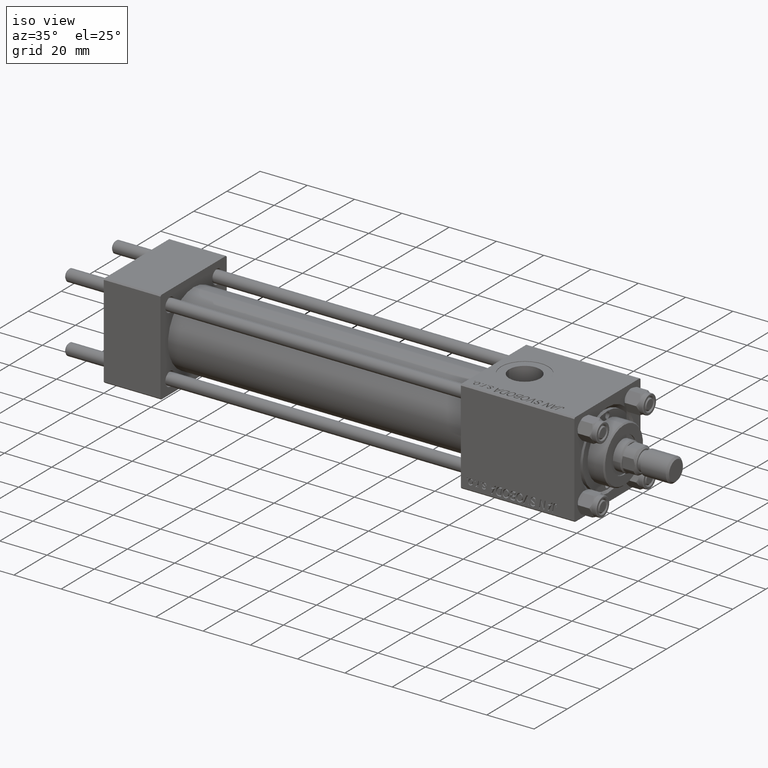
[diagram: clean part render]
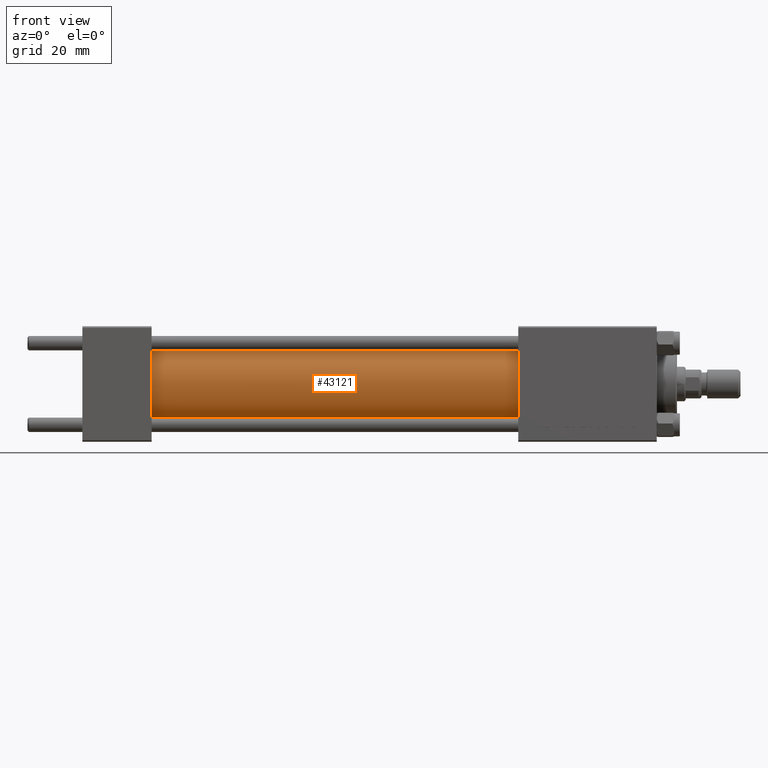
[diagram: tour spotlight — one face highlighted and labeled with its STEP entity id]
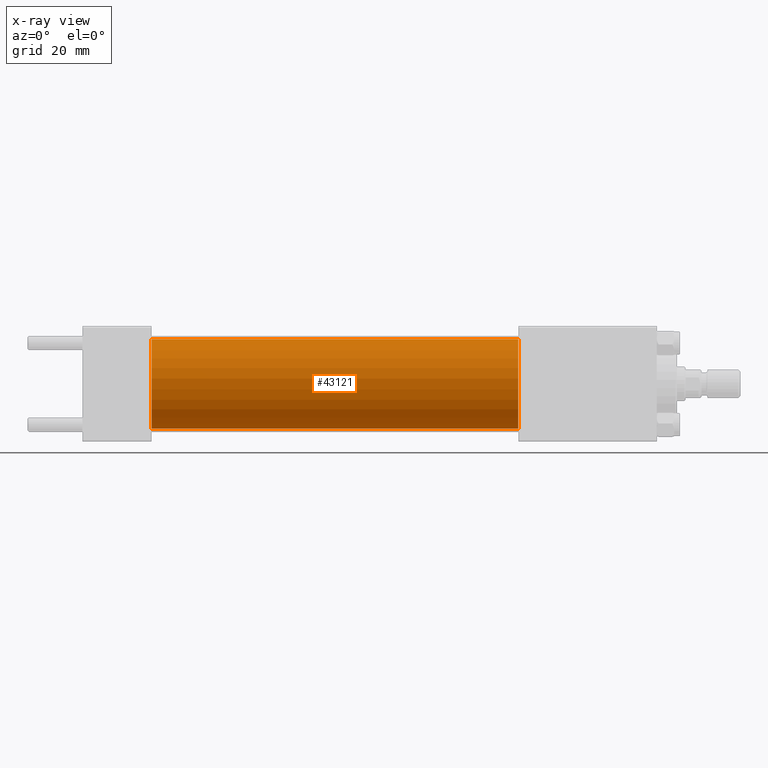
[diagram: x-ray of the same camera — body ghosted, this tour face saturated]
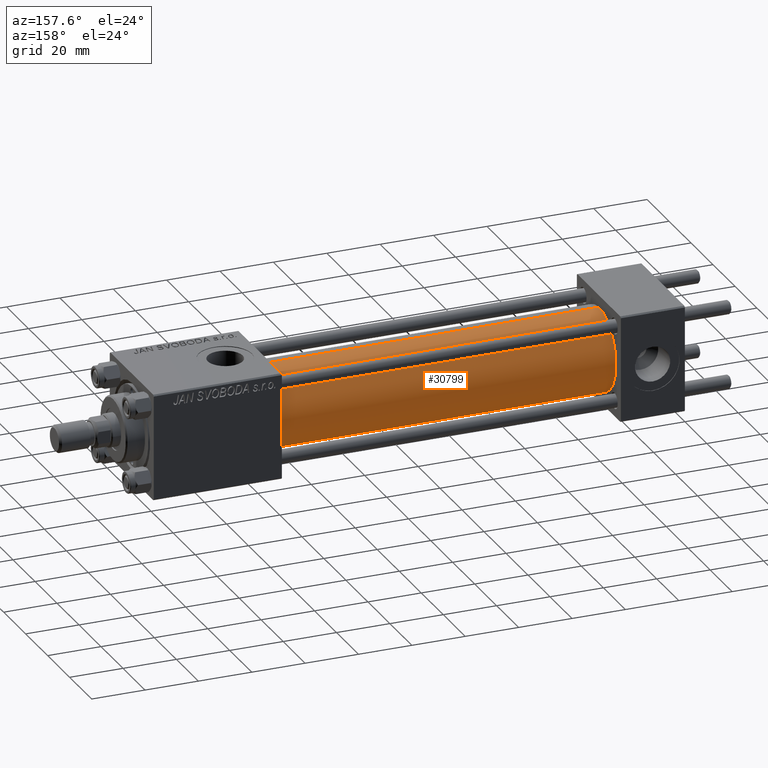
[diagram: tour spotlight — one face highlighted and labeled with its STEP entity id]
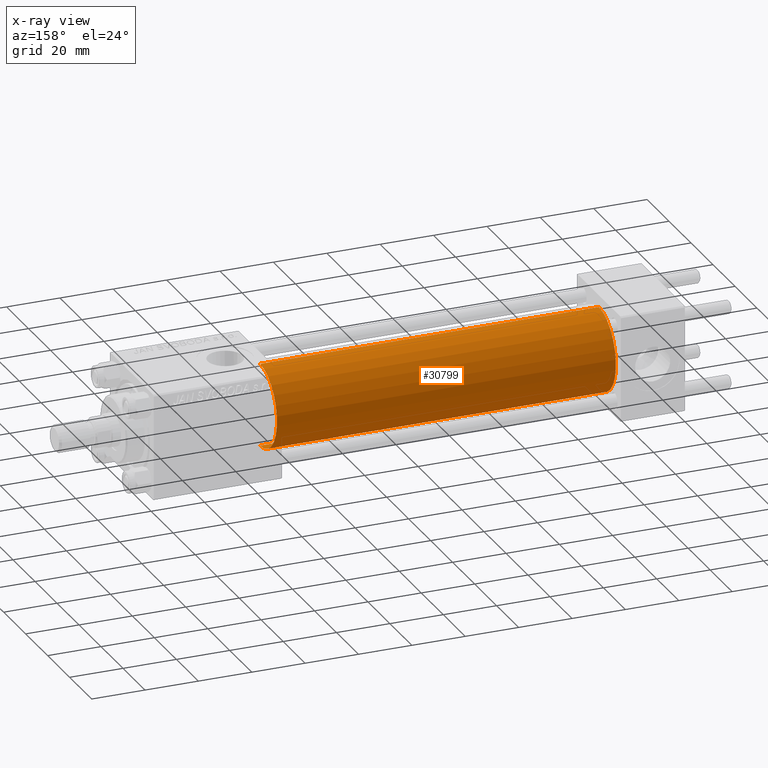
[diagram: x-ray of the same camera — body ghosted, this tour face saturated]
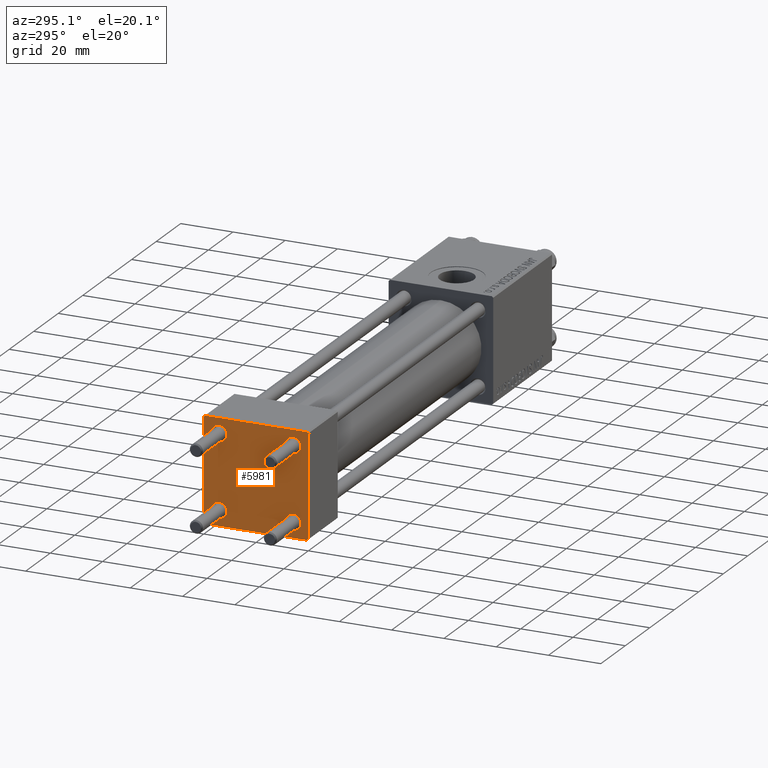
[diagram: tour spotlight — one face highlighted and labeled with its STEP entity id]
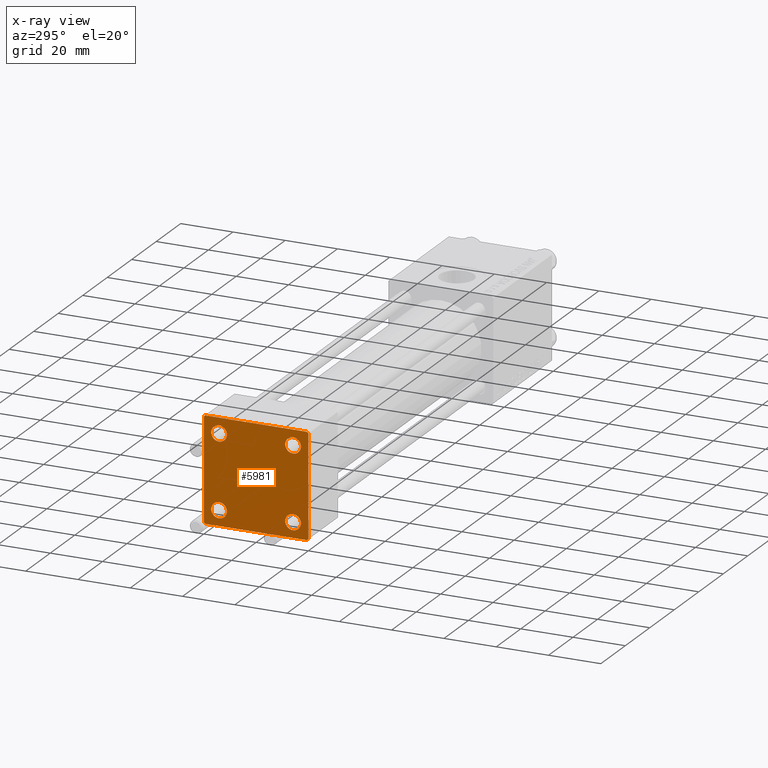
[diagram: x-ray of the same camera — body ghosted, this tour face saturated]
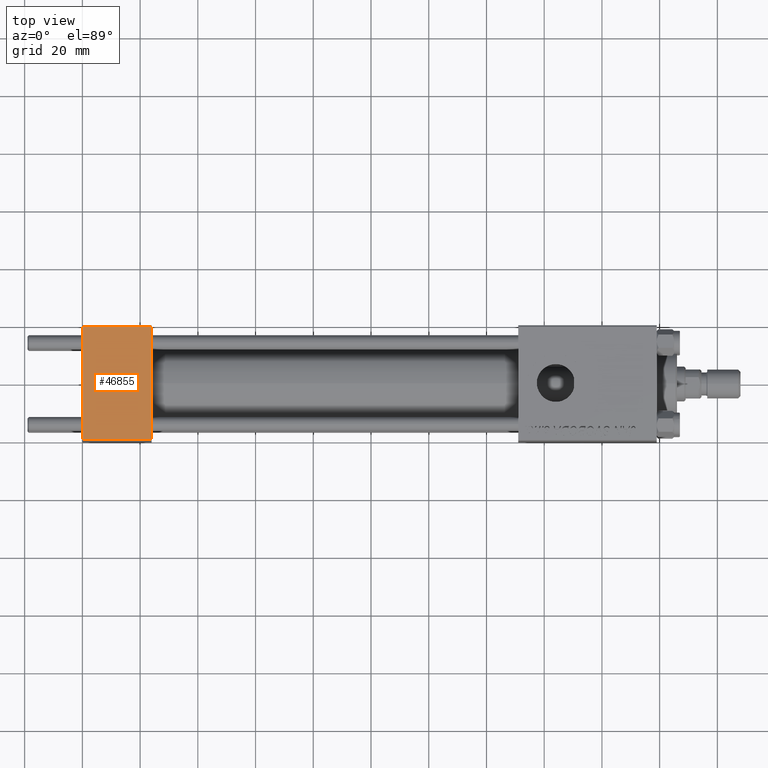
[diagram: tour spotlight — one face highlighted and labeled with its STEP entity id]
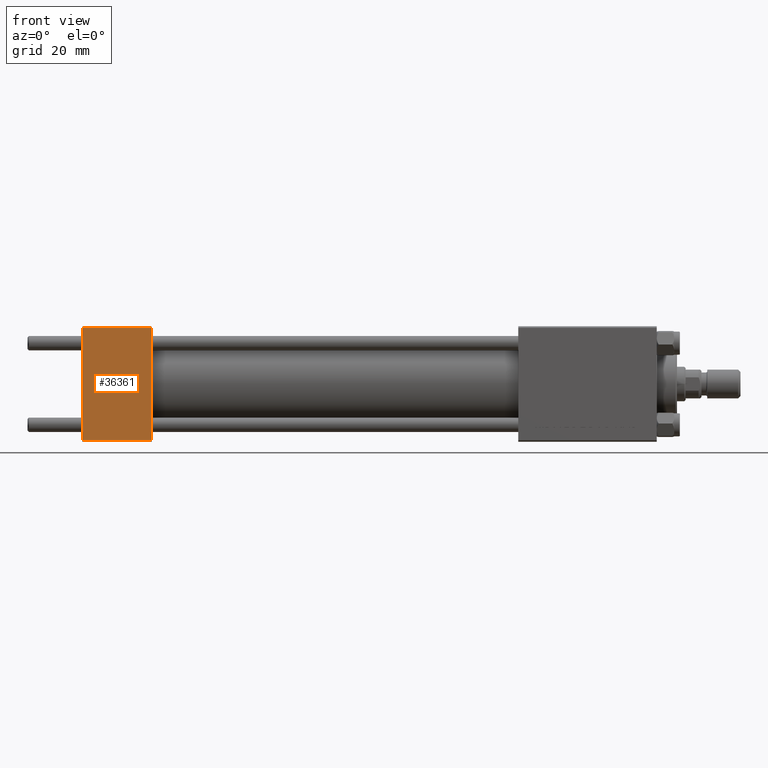
[diagram: tour spotlight — one face highlighted and labeled with its STEP entity id]
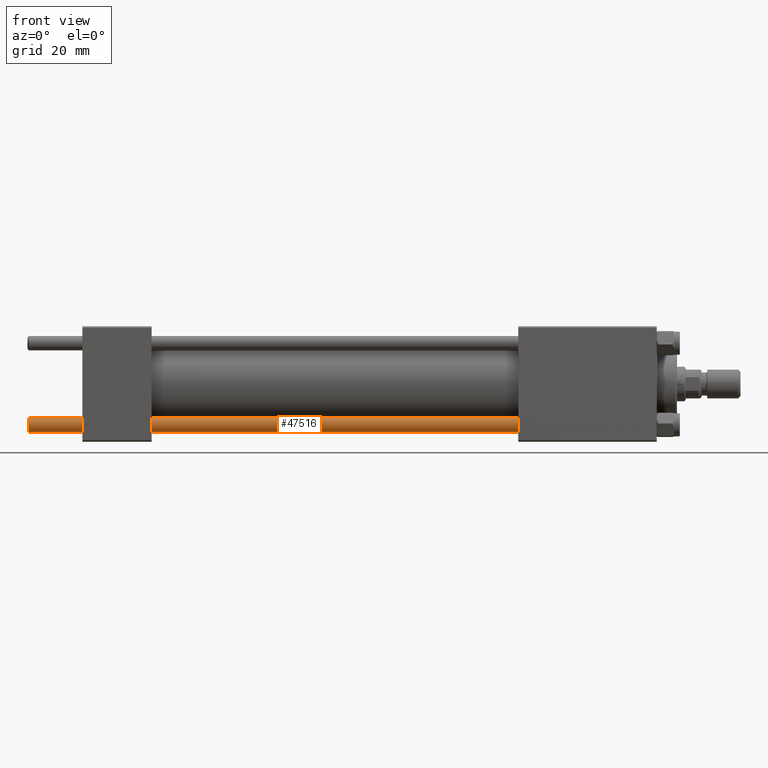
[diagram: tour spotlight — one face highlighted and labeled with its STEP entity id]
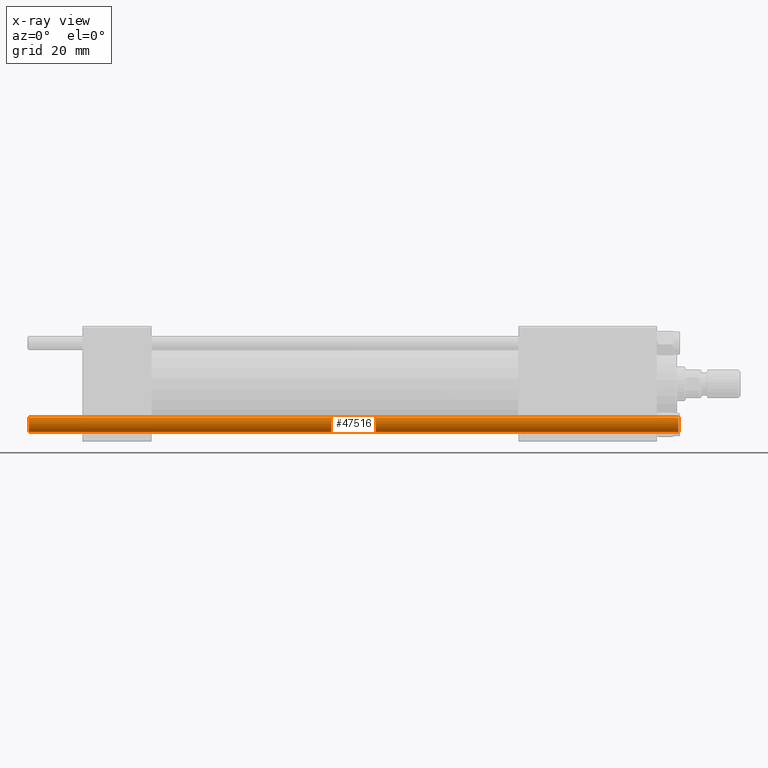
[diagram: x-ray of the same camera — body ghosted, this tour face saturated]
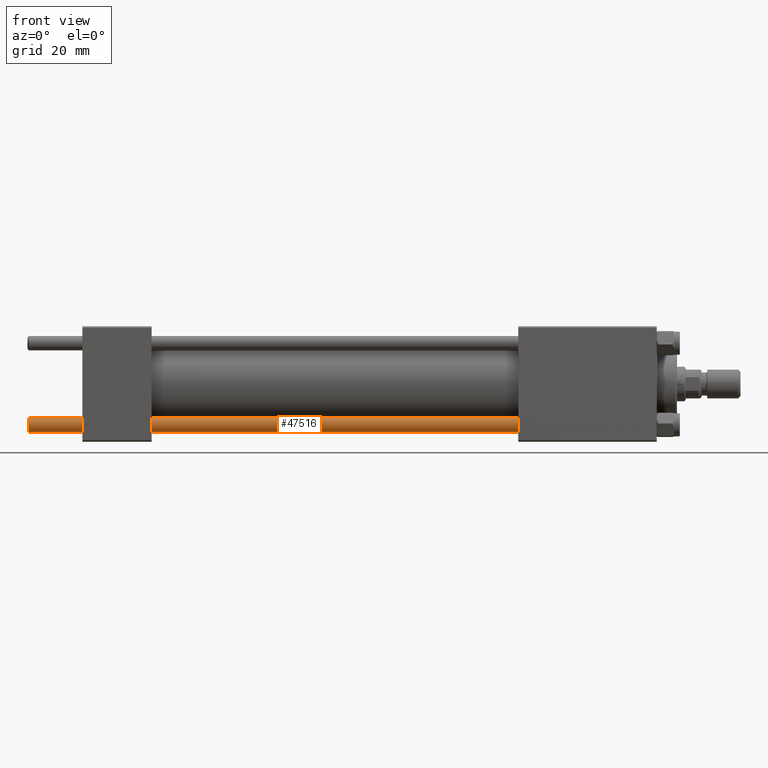
[diagram: tour spotlight — one face highlighted and labeled with its STEP entity id]
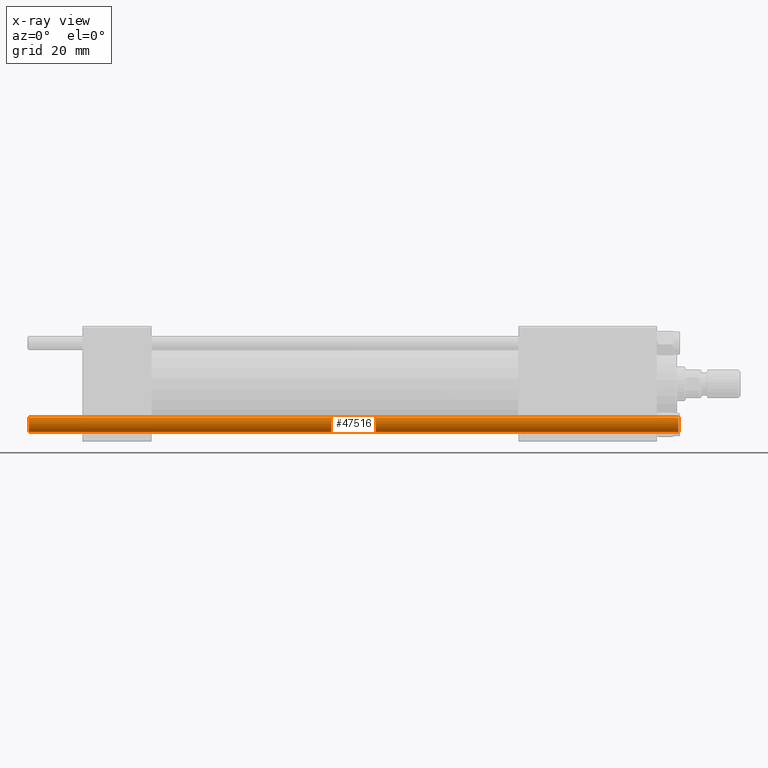
[diagram: x-ray of the same camera — body ghosted, this tour face saturated]
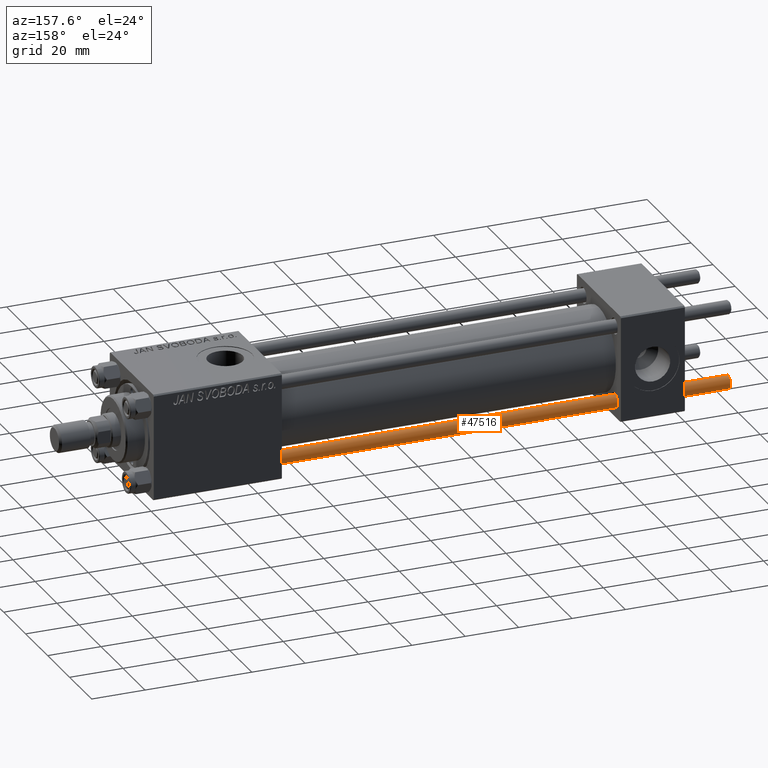
[diagram: tour spotlight — one face highlighted and labeled with its STEP entity id]
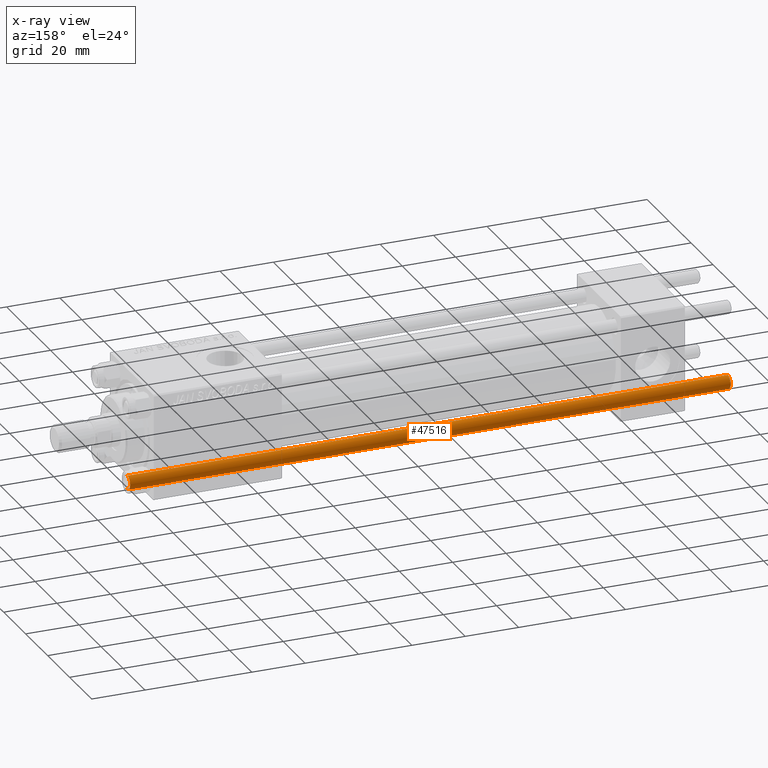
[diagram: x-ray of the same camera — body ghosted, this tour face saturated]
A machine part: a face-by-face anatomy tour. The part has 1152 B-rep faces; the first image is the clean iso view, then the 8 largest visible faces are spotlighted one at a time (largest first), each with its STEP entity span.

Face 1 — front view, entity #43121. An x-ray twin of the same camera follows (body ghosted, this face saturated) — the face is partly hidden behind the body. In plain terms, the highlighted cylindrical surface (partial cylindrical patch) has radius 15.5 mm, axis along (-1, -0, -0).
Definition (entity closure, byte-faithful):
#927 = DIRECTION ( 'NONE',  ( 1.000000000000000000, 0.000000000000000000, 0.000000000000000000 ) ) ;
#1795 = CIRCLE ( 'NONE', #42511, 15.50000000000000000 ) ;
#1943 = ORIENTED_EDGE ( 'NONE', *, *, #12448, .F. ) ;
#3810 = DIRECTION ( 'NONE',  ( -1.000000000000000000, -0.000000000000000000, -0.000000000000000000 ) ) ;
#4733 = DIRECTION ( 'NONE',  ( 0.000000000000000000, 0.000000000000000000, 1.000000000000000000 ) ) ;
#5282 = CARTESIAN_POINT ( 'NONE',  ( 23.99999999999999289, 0.000000000000000000, 15.50000000000000000 ) ) ;
#6144 = CARTESIAN_POINT ( 'NONE',  ( 151.0000000000000000, 1.898202538678397557E-15, -15.50000000000000000 ) ) ;
#6167 = DIRECTION ( 'NONE',  ( 0.000000000000000000, 0.000000000000000000, 1.000000000000000000 ) ) ;
#6948 = AXIS2_PLACEMENT_3D ( 'NONE', #14591, #41105, #6167 ) ;
#7231 = LINE ( 'NONE', #23529, #14005 ) ;
#7379 = CARTESIAN_POINT ( 'NONE',  ( 151.0000000000000000, 0.000000000000000000, 0.000000000000000000 ) ) ;
#10784 = EDGE_CURVE ( 'NONE', #45286, #40526, #7231, .T. ) ;
#11297 = VERTEX_POINT ( 'NONE', #5282 ) ;
#12448 = EDGE_CURVE ( 'NONE', #49851, #45286, #1795, .T. ) ;
#14005 = VECTOR ( 'NONE', #35004, 1000.000000000000000 ) ;
#14088 = CYLINDRICAL_SURFACE ( 'NONE', #6948, 15.50000000000000000 ) ;
#14341 = FACE_OUTER_BOUND ( 'NONE', #18877, .T. ) ;
#14573 = EDGE_CURVE ( 'NONE', #49851, #11297, #19122, .T. ) ;
#14591 = CARTESIAN_POINT ( 'NONE',  ( 151.0000000000000000, 0.000000000000000000, 0.000000000000000000 ) ) ;
#18877 = EDGE_LOOP ( 'NONE', ( #26655, #1943, #20324, #33878 ) ) ;
#19122 = LINE ( 'NONE', #38745, #27120 ) ;
#20324 = ORIENTED_EDGE ( 'NONE', *, *, #14573, .T. ) ;
#23529 = CARTESIAN_POINT ( 'NONE',  ( 151.0000000000000000, 1.898202538678397557E-15, -15.50000000000000000 ) ) ;
#26655 = ORIENTED_EDGE ( 'NONE', *, *, #10784, .F. ) ;
#27120 = VECTOR ( 'NONE', #3810, 1000.000000000000000 ) ;
#27245 = DIRECTION ( 'NONE',  ( 0.000000000000000000, 0.000000000000000000, -1.000000000000000000 ) ) ;
#27458 = AXIS2_PLACEMENT_3D ( 'NONE', #39679, #927, #4733 ) ;
#32335 = CIRCLE ( 'NONE', #27458, 15.50000000000000000 ) ;
#33878 = ORIENTED_EDGE ( 'NONE', *, *, #47865, .T. ) ;
#35004 = DIRECTION ( 'NONE',  ( -1.000000000000000000, -0.000000000000000000, -0.000000000000000000 ) ) ;
#38745 = CARTESIAN_POINT ( 'NONE',  ( 151.0000000000000000, 0.000000000000000000, 15.50000000000000000 ) ) ;
#39679 = CARTESIAN_POINT ( 'NONE',  ( 23.99999999999999289, 0.000000000000000000, 0.000000000000000000 ) ) ;
#40526 = VERTEX_POINT ( 'NONE', #41898 ) ;
#41105 = DIRECTION ( 'NONE',  ( -1.000000000000000000, -0.000000000000000000, -0.000000000000000000 ) ) ;
#41898 = CARTESIAN_POINT ( 'NONE',  ( 23.99999999999999289, 1.898202538678397557E-15, -15.50000000000000000 ) ) ;
#42511 = AXIS2_PLACEMENT_3D ( 'NONE', #7379, #50435, #27245 ) ;
#43121 = ADVANCED_FACE ( 'NONE', ( #14341 ), #14088, .T. ) ;
#45286 = VERTEX_POINT ( 'NONE', #6144 ) ;
#47865 = EDGE_CURVE ( 'NONE', #11297, #40526, #32335, .T. ) ;
#49851 = VERTEX_POINT ( 'NONE', #50262 ) ;
#50262 = CARTESIAN_POINT ( 'NONE',  ( 151.0000000000000000, 0.000000000000000000, 15.50000000000000000 ) ) ;
#50435 = DIRECTION ( 'NONE',  ( 1.000000000000000000, 0.000000000000000000, 0.000000000000000000 ) ) ;

Face 2 — auxiliary view, entity #30799. An x-ray twin of the same camera follows (body ghosted, this face saturated) — the face is partly hidden behind the body. In plain terms, the highlighted cylindrical surface (partial cylindrical patch) has radius 15.5 mm, axis along (-1, -0, -0).
Definition (entity closure, byte-faithful):
#220 = CARTESIAN_POINT ( 'NONE',  ( 151.0000000000000000, 0.000000000000000000, 0.000000000000000000 ) ) ;
#3810 = DIRECTION ( 'NONE',  ( -1.000000000000000000, -0.000000000000000000, -0.000000000000000000 ) ) ;
#5282 = CARTESIAN_POINT ( 'NONE',  ( 23.99999999999999289, 0.000000000000000000, 15.50000000000000000 ) ) ;
#6144 = CARTESIAN_POINT ( 'NONE',  ( 151.0000000000000000, 1.898202538678397557E-15, -15.50000000000000000 ) ) ;
#7231 = LINE ( 'NONE', #23529, #14005 ) ;
#8627 = CYLINDRICAL_SURFACE ( 'NONE', #9066, 15.50000000000000000 ) ;
#9066 = AXIS2_PLACEMENT_3D ( 'NONE', #220, #35634, #35389 ) ;
#9837 = DIRECTION ( 'NONE',  ( 0.000000000000000000, 0.000000000000000000, 1.000000000000000000 ) ) ;
#10784 = EDGE_CURVE ( 'NONE', #45286, #40526, #7231, .T. ) ;
#11297 = VERTEX_POINT ( 'NONE', #5282 ) ;
#11453 = FACE_OUTER_BOUND ( 'NONE', #29609, .T. ) ;
#11787 = CARTESIAN_POINT ( 'NONE',  ( 151.0000000000000000, 0.000000000000000000, 0.000000000000000000 ) ) ;
#14005 = VECTOR ( 'NONE', #35004, 1000.000000000000000 ) ;
#14166 = EDGE_CURVE ( 'NONE', #45286, #49851, #22250, .T. ) ;
#14573 = EDGE_CURVE ( 'NONE', #49851, #11297, #19122, .T. ) ;
#16551 = AXIS2_PLACEMENT_3D ( 'NONE', #11787, #24241, #31891 ) ;
#19122 = LINE ( 'NONE', #38745, #27120 ) ;
#21311 = DIRECTION ( 'NONE',  ( 1.000000000000000000, 0.000000000000000000, 0.000000000000000000 ) ) ;
#22250 = CIRCLE ( 'NONE', #16551, 15.50000000000000000 ) ;
#23529 = CARTESIAN_POINT ( 'NONE',  ( 151.0000000000000000, 1.898202538678397557E-15, -15.50000000000000000 ) ) ;
#24241 = DIRECTION ( 'NONE',  ( 1.000000000000000000, 0.000000000000000000, 0.000000000000000000 ) ) ;
#25117 = CARTESIAN_POINT ( 'NONE',  ( 23.99999999999999289, 0.000000000000000000, 0.000000000000000000 ) ) ;
#25768 = ORIENTED_EDGE ( 'NONE', *, *, #14166, .F. ) ;
#27120 = VECTOR ( 'NONE', #3810, 1000.000000000000000 ) ;
#29609 = EDGE_LOOP ( 'NONE', ( #25768, #40313, #49373, #30433 ) ) ;
#30433 = ORIENTED_EDGE ( 'NONE', *, *, #14573, .F. ) ;
#30799 = ADVANCED_FACE ( 'NONE', ( #11453 ), #8627, .T. ) ;
#31891 = DIRECTION ( 'NONE',  ( 0.000000000000000000, 0.000000000000000000, -1.000000000000000000 ) ) ;
#35004 = DIRECTION ( 'NONE',  ( -1.000000000000000000, -0.000000000000000000, -0.000000000000000000 ) ) ;
#35389 = DIRECTION ( 'NONE',  ( 0.000000000000000000, 0.000000000000000000, 1.000000000000000000 ) ) ;
#35634 = DIRECTION ( 'NONE',  ( -1.000000000000000000, -0.000000000000000000, -0.000000000000000000 ) ) ;
#38401 = EDGE_CURVE ( 'NONE', #40526, #11297, #41887, .T. ) ;
#38745 = CARTESIAN_POINT ( 'NONE',  ( 151.0000000000000000, 0.000000000000000000, 15.50000000000000000 ) ) ;
#40313 = ORIENTED_EDGE ( 'NONE', *, *, #10784, .T. ) ;
#40526 = VERTEX_POINT ( 'NONE', #41898 ) ;
#41887 = CIRCLE ( 'NONE', #48379, 15.50000000000000000 ) ;
#41898 = CARTESIAN_POINT ( 'NONE',  ( 23.99999999999999289, 1.898202538678397557E-15, -15.50000000000000000 ) ) ;
#45286 = VERTEX_POINT ( 'NONE', #6144 ) ;
#48379 = AXIS2_PLACEMENT_3D ( 'NONE', #25117, #21311, #9837 ) ;
#49373 = ORIENTED_EDGE ( 'NONE', *, *, #38401, .T. ) ;
#49851 = VERTEX_POINT ( 'NONE', #50262 ) ;
#50262 = CARTESIAN_POINT ( 'NONE',  ( 151.0000000000000000, 0.000000000000000000, 15.50000000000000000 ) ) ;

Face 3 — auxiliary view, entity #5981. An x-ray twin of the same camera follows (body ghosted, this face saturated) — the face is partly hidden behind the body. In plain terms, the highlighted planar face has unit normal (-1, 0, 0).
Definition (entity closure, byte-faithful):
#40 = DIRECTION ( 'NONE',  ( 1.000000000000000000, 0.000000000000000000, 0.000000000000000000 ) ) ;
#347 = VERTEX_POINT ( 'NONE', #44162 ) ;
#458 = CARTESIAN_POINT ( 'NONE',  ( 0.000000000000000000, 14.14999999999999858, -17.15000000000000213 ) ) ;
#774 = ORIENTED_EDGE ( 'NONE', *, *, #48232, .T. ) ;
#973 = ORIENTED_EDGE ( 'NONE', *, *, #46277, .T. ) ;
#1519 = ORIENTED_EDGE ( 'NONE', *, *, #3358, .T. ) ;
#2198 = CARTESIAN_POINT ( 'NONE',  ( 0.000000000000000000, 0.000000000000000000, 0.000000000000000000 ) ) ;
#2281 = EDGE_CURVE ( 'NONE', #31545, #25468, #31703, .T. ) ;
#2395 = ORIENTED_EDGE ( 'NONE', *, *, #40429, .T. ) ;
#2808 = CARTESIAN_POINT ( 'NONE',  ( 0.000000000000000000, 20.00000000000000000, -19.50000000000002132 ) ) ;
#3358 = EDGE_CURVE ( 'NONE', #28868, #32470, #43867, .T. ) ;
#4305 = EDGE_CURVE ( 'NONE', #40548, #44528, #4805, .T. ) ;
#4776 = EDGE_CURVE ( 'NONE', #14009, #14320, #34161, .T. ) ;
#4805 = CIRCLE ( 'NONE', #43904, 3.000000000000000888 ) ;
#4859 = DIRECTION ( 'NONE',  ( 0.000000000000000000, 0.000000000000000000, 1.000000000000000000 ) ) ;
#4975 = DIRECTION ( 'NONE',  ( 0.000000000000000000, 0.000000000000000000, 1.000000000000000000 ) ) ;
#5981 = ADVANCED_FACE ( 'NONE', ( #48335, #29970, #14197, #10608, #29722 ), #36874, .T. ) ;
#6738 = ORIENTED_EDGE ( 'NONE', *, *, #35846, .T. ) ;
#7479 = CARTESIAN_POINT ( 'NONE',  ( 0.000000000000000000, 14.14999999999999858, 17.15000000000000568 ) ) ;
#7555 = CIRCLE ( 'NONE', #49052, 3.000000000000000888 ) ;
#7787 = ORIENTED_EDGE ( 'NONE', *, *, #14579, .T. ) ;
#7854 = DIRECTION ( 'NONE',  ( 0.000000000000000000, 0.000000000000000000, 1.000000000000000000 ) ) ;
#8707 = CARTESIAN_POINT ( 'NONE',  ( 0.000000000000000000, -14.14999999999999503, 14.15000000000000391 ) ) ;
#8980 = CARTESIAN_POINT ( 'NONE',  ( 0.000000000000000000, -20.00000000000000000, -19.49999999999999645 ) ) ;
#9350 = VECTOR ( 'NONE', #50387, 999.9999999999998863 ) ;
#9746 = AXIS2_PLACEMENT_3D ( 'NONE', #42365, #40, #15608 ) ;
#10511 = CARTESIAN_POINT ( 'NONE',  ( -0.000000000000000000, 19.74999999999986855, -19.75000000000014211 ) ) ;
#10608 = FACE_BOUND ( 'NONE', #31970, .T. ) ;
#11001 = EDGE_LOOP ( 'NONE', ( #13899, #6738 ) ) ;
#11105 = VECTOR ( 'NONE', #48978, 1000.000000000000114 ) ;
#11386 = DIRECTION ( 'NONE',  ( 1.000000000000000000, 0.000000000000000000, 0.000000000000000000 ) ) ;
#11661 = CARTESIAN_POINT ( 'NONE',  ( 0.000000000000000000, -19.75000000000020961, -19.74999999999979394 ) ) ;
#11859 = CARTESIAN_POINT ( 'NONE',  ( 0.000000000000000000, -14.14999999999999503, -17.15000000000000568 ) ) ;
#12054 = EDGE_CURVE ( 'NONE', #15963, #15255, #30379, .T. ) ;
#12403 = EDGE_CURVE ( 'NONE', #44528, #40548, #17307, .T. ) ;
#13023 = VERTEX_POINT ( 'NONE', #49814 ) ;
#13754 = AXIS2_PLACEMENT_3D ( 'NONE', #31036, #34369, #7854 ) ;
#13899 = ORIENTED_EDGE ( 'NONE', *, *, #2281, .T. ) ;
#14009 = VERTEX_POINT ( 'NONE', #33197 ) ;
#14041 = AXIS2_PLACEMENT_3D ( 'NONE', #23173, #46122, #4975 ) ;
#14197 = FACE_BOUND ( 'NONE', #11001, .T. ) ;
#14320 = VERTEX_POINT ( 'NONE', #48689 ) ;
#14579 = EDGE_CURVE ( 'NONE', #15255, #13023, #34905, .T. ) ;
#14596 = VECTOR ( 'NONE', #19634, 1000.000000000000000 ) ;
#14851 = DIRECTION ( 'NONE',  ( 0.000000000000000000, 0.000000000000000000, -1.000000000000000000 ) ) ;
#15029 = CARTESIAN_POINT ( 'NONE',  ( -0.000000000000000000, -19.74999999999992539, 19.75000000000006395 ) ) ;
#15255 = VERTEX_POINT ( 'NONE', #21852 ) ;
#15608 = DIRECTION ( 'NONE',  ( 0.000000000000000000, 0.000000000000000000, 1.000000000000000000 ) ) ;
#15963 = VERTEX_POINT ( 'NONE', #2808 ) ;
#16045 = CARTESIAN_POINT ( 'NONE',  ( 0.000000000000000000, 14.14999999999999858, -11.15000000000000036 ) ) ;
#16064 = EDGE_CURVE ( 'NONE', #18723, #17765, #23191, .T. ) ;
#17307 = CIRCLE ( 'NONE', #14041, 3.000000000000000888 ) ;
#17330 = VERTEX_POINT ( 'NONE', #49836 ) ;
#17391 = EDGE_CURVE ( 'NONE', #32470, #28868, #7555, .T. ) ;
#17765 = VERTEX_POINT ( 'NONE', #8980 ) ;
#18043 = EDGE_LOOP ( 'NONE', ( #2395, #774 ) ) ;
#18723 = VERTEX_POINT ( 'NONE', #40635 ) ;
#19634 = DIRECTION ( 'NONE',  ( 0.000000000000000000, -1.000000000000000000, -2.602085213965210149E-16 ) ) ;
#21750 = AXIS2_PLACEMENT_3D ( 'NONE', #8707, #28566, #4859 ) ;
#21852 = CARTESIAN_POINT ( 'NONE',  ( 0.000000000000000000, 19.50000000000000711, -20.00000000000000711 ) ) ;
#22270 = DIRECTION ( 'NONE',  ( 0.000000000000000000, 0.000000000000000000, 1.000000000000000000 ) ) ;
#22303 = DIRECTION ( 'NONE',  ( 0.000000000000000000, 0.000000000000000000, 1.000000000000000000 ) ) ;
#22731 = LINE ( 'NONE', #38287, #39997 ) ;
#22939 = CARTESIAN_POINT ( 'NONE',  ( 0.000000000000000000, -20.00000000000000355, 19.99999999999998934 ) ) ;
#23173 = CARTESIAN_POINT ( 'NONE',  ( 0.000000000000000000, 14.14999999999999858, 14.15000000000000036 ) ) ;
#23191 = LINE ( 'NONE', #22939, #45066 ) ;
#23619 = LINE ( 'NONE', #34589, #9350 ) ;
#25468 = VERTEX_POINT ( 'NONE', #458 ) ;
#25536 = LINE ( 'NONE', #15029, #11105 ) ;
#25701 = CARTESIAN_POINT ( 'NONE',  ( 0.000000000000000000, 14.14999999999999858, 11.14999999999999858 ) ) ;
#26149 = DIRECTION ( 'NONE',  ( -0.000000000000000000, 0.000000000000000000, 1.000000000000000000 ) ) ;
#27043 = CARTESIAN_POINT ( 'NONE',  ( 0.000000000000000000, -14.14999999999999503, 11.15000000000000213 ) ) ;
#27238 = ORIENTED_EDGE ( 'NONE', *, *, #38084, .T. ) ;
#27513 = DIRECTION ( 'NONE',  ( 0.000000000000000000, -1.000000000000000000, 1.734723475976807094E-16 ) ) ;
#27582 = ORIENTED_EDGE ( 'NONE', *, *, #12403, .T. ) ;
#27634 = AXIS2_PLACEMENT_3D ( 'NONE', #2198, #45279, #26149 ) ;
#28566 = DIRECTION ( 'NONE',  ( 1.000000000000000000, 0.000000000000000000, 0.000000000000000000 ) ) ;
#28752 = ORIENTED_EDGE ( 'NONE', *, *, #48663, .T. ) ;
#28868 = VERTEX_POINT ( 'NONE', #48946 ) ;
#29063 = CIRCLE ( 'NONE', #21750, 3.000000000000000888 ) ;
#29329 = ORIENTED_EDGE ( 'NONE', *, *, #17391, .T. ) ;
#29722 = FACE_OUTER_BOUND ( 'NONE', #36125, .T. ) ;
#29970 = FACE_BOUND ( 'NONE', #45592, .T. ) ;
#30379 = LINE ( 'NONE', #10511, #40886 ) ;
#30381 = EDGE_CURVE ( 'NONE', #347, #15963, #22731, .T. ) ;
#31036 = CARTESIAN_POINT ( 'NONE',  ( 0.000000000000000000, -14.14999999999999503, -14.15000000000000391 ) ) ;
#31193 = VECTOR ( 'NONE', #27513, 1000.000000000000000 ) ;
#31545 = VERTEX_POINT ( 'NONE', #16045 ) ;
#31703 = CIRCLE ( 'NONE', #9746, 3.000000000000000888 ) ;
#31970 = EDGE_LOOP ( 'NONE', ( #49630, #27582 ) ) ;
#32470 = VERTEX_POINT ( 'NONE', #11859 ) ;
#33077 = LINE ( 'NONE', #11661, #40543 ) ;
#33197 = CARTESIAN_POINT ( 'NONE',  ( 0.000000000000000000, 19.50000000000000000, 20.00000000000000000 ) ) ;
#34098 = VERTEX_POINT ( 'NONE', #27043 ) ;
#34161 = LINE ( 'NONE', #49712, #14596 ) ;
#34179 = ORIENTED_EDGE ( 'NONE', *, *, #12054, .T. ) ;
#34287 = CARTESIAN_POINT ( 'NONE',  ( 0.000000000000000000, -14.14999999999999503, -14.15000000000000391 ) ) ;
#34369 = DIRECTION ( 'NONE',  ( 1.000000000000000000, 0.000000000000000000, 0.000000000000000000 ) ) ;
#34589 = CARTESIAN_POINT ( 'NONE',  ( -0.000000000000000000, 19.75000000000013500, 19.74999999999986144 ) ) ;
#34905 = LINE ( 'NONE', #38286, #31193 ) ;
#35115 = ORIENTED_EDGE ( 'NONE', *, *, #4776, .F. ) ;
#35322 = CARTESIAN_POINT ( 'NONE',  ( 0.000000000000000000, 14.14999999999999858, 14.15000000000000036 ) ) ;
#35846 = EDGE_CURVE ( 'NONE', #25468, #31545, #36132, .T. ) ;
#36125 = EDGE_LOOP ( 'NONE', ( #39642, #34179, #7787, #28752, #36743, #973, #35115, #27238 ) ) ;
#36132 = CIRCLE ( 'NONE', #41020, 3.000000000000000888 ) ;
#36743 = ORIENTED_EDGE ( 'NONE', *, *, #16064, .F. ) ;
#36806 = CARTESIAN_POINT ( 'NONE',  ( 0.000000000000000000, -14.14999999999999503, 14.15000000000000391 ) ) ;
#36874 = PLANE ( 'NONE',  #27634 ) ;
#37080 = CIRCLE ( 'NONE', #37914, 3.000000000000000888 ) ;
#37343 = CARTESIAN_POINT ( 'NONE',  ( 0.000000000000000000, 14.14999999999999858, -14.15000000000000036 ) ) ;
#37914 = AXIS2_PLACEMENT_3D ( 'NONE', #36806, #40644, #22270 ) ;
#38084 = EDGE_CURVE ( 'NONE', #14009, #347, #23619, .T. ) ;
#38286 = CARTESIAN_POINT ( 'NONE',  ( 0.000000000000000000, 20.00000000000000000, -20.00000000000000711 ) ) ;
#38287 = CARTESIAN_POINT ( 'NONE',  ( 0.000000000000000000, 20.00000000000000000, 20.00000000000000000 ) ) ;
#38634 = DIRECTION ( 'NONE',  ( 1.000000000000000000, 0.000000000000000000, 0.000000000000000000 ) ) ;
#39642 = ORIENTED_EDGE ( 'NONE', *, *, #30381, .T. ) ;
#39997 = VECTOR ( 'NONE', #14851, 1000.000000000000000 ) ;
#40429 = EDGE_CURVE ( 'NONE', #17330, #34098, #37080, .T. ) ;
#40543 = VECTOR ( 'NONE', #46568, 1000.000000000000000 ) ;
#40548 = VERTEX_POINT ( 'NONE', #7479 ) ;
#40635 = CARTESIAN_POINT ( 'NONE',  ( 0.000000000000000000, -20.00000000000000355, 19.49999999999998224 ) ) ;
#40644 = DIRECTION ( 'NONE',  ( 1.000000000000000000, 0.000000000000000000, 0.000000000000000000 ) ) ;
#40886 = VECTOR ( 'NONE', #45932, 1000.000000000000000 ) ;
#41020 = AXIS2_PLACEMENT_3D ( 'NONE', #37343, #45747, #22303 ) ;
#42314 = DIRECTION ( 'NONE',  ( 0.000000000000000000, 8.673617379884036705E-17, -1.000000000000000000 ) ) ;
#42365 = CARTESIAN_POINT ( 'NONE',  ( 0.000000000000000000, 14.14999999999999858, -14.15000000000000036 ) ) ;
#43867 = CIRCLE ( 'NONE', #13754, 3.000000000000000888 ) ;
#43904 = AXIS2_PLACEMENT_3D ( 'NONE', #35322, #11386, #50118 ) ;
#44162 = CARTESIAN_POINT ( 'NONE',  ( 0.000000000000000000, 20.00000000000000000, 19.49999999999999289 ) ) ;
#44528 = VERTEX_POINT ( 'NONE', #25701 ) ;
#45066 = VECTOR ( 'NONE', #42314, 1000.000000000000000 ) ;
#45279 = DIRECTION ( 'NONE',  ( -1.000000000000000000, 0.000000000000000000, -0.000000000000000000 ) ) ;
#45592 = EDGE_LOOP ( 'NONE', ( #1519, #29329 ) ) ;
#45747 = DIRECTION ( 'NONE',  ( 1.000000000000000000, 0.000000000000000000, 0.000000000000000000 ) ) ;
#45932 = DIRECTION ( 'NONE',  ( -0.000000000000000000, -0.7071067811865524577, -0.7071067811865426878 ) ) ;
#46122 = DIRECTION ( 'NONE',  ( 1.000000000000000000, 0.000000000000000000, 0.000000000000000000 ) ) ;
#46277 = EDGE_CURVE ( 'NONE', #18723, #14320, #25536, .T. ) ;
#46518 = DIRECTION ( 'NONE',  ( 0.000000000000000000, 0.000000000000000000, 1.000000000000000000 ) ) ;
#46568 = DIRECTION ( 'NONE',  ( 0.000000000000000000, -0.7071067811865401342, 0.7071067811865549002 ) ) ;
#48232 = EDGE_CURVE ( 'NONE', #34098, #17330, #29063, .T. ) ;
#48335 = FACE_BOUND ( 'NONE', #18043, .T. ) ;
#48663 = EDGE_CURVE ( 'NONE', #13023, #17765, #33077, .T. ) ;
#48689 = CARTESIAN_POINT ( 'NONE',  ( 0.000000000000000000, -19.49999999999999289, 19.99999999999998934 ) ) ;
#48946 = CARTESIAN_POINT ( 'NONE',  ( 0.000000000000000000, -14.14999999999999503, -11.15000000000000391 ) ) ;
#48978 = DIRECTION ( 'NONE',  ( -0.000000000000000000, 0.7071067811865500152, 0.7071067811865451302 ) ) ;
#49052 = AXIS2_PLACEMENT_3D ( 'NONE', #34287, #38634, #46518 ) ;
#49630 = ORIENTED_EDGE ( 'NONE', *, *, #4305, .T. ) ;
#49712 = CARTESIAN_POINT ( 'NONE',  ( 0.000000000000000000, 20.00000000000000000, 20.00000000000000000 ) ) ;
#49814 = CARTESIAN_POINT ( 'NONE',  ( 0.000000000000000000, -19.50000000000000711, -20.00000000000000000 ) ) ;
#49836 = CARTESIAN_POINT ( 'NONE',  ( 0.000000000000000000, -14.14999999999999503, 17.15000000000000568 ) ) ;
#50118 = DIRECTION ( 'NONE',  ( 0.000000000000000000, 0.000000000000000000, 1.000000000000000000 ) ) ;
#50387 = DIRECTION ( 'NONE',  ( 0.000000000000000000, 0.7071067811865425767, -0.7071067811865525687 ) ) ;

Face 4 — top view, entity #46855. In plain terms, the highlighted planar face has unit normal (0, 0, -1).
Definition (entity closure, byte-faithful):
#232 = CARTESIAN_POINT ( 'NONE',  ( 24.00000000000000000, -19.49999999999999289, 19.99999999999998934 ) ) ;
#4520 = LINE ( 'NONE', #20091, #40500 ) ;
#4776 = EDGE_CURVE ( 'NONE', #14009, #14320, #34161, .T. ) ;
#5476 = VERTEX_POINT ( 'NONE', #24197 ) ;
#6485 = DIRECTION ( 'NONE',  ( 0.000000000000000000, 1.000000000000000000, 2.602085213965210149E-16 ) ) ;
#8126 = EDGE_CURVE ( 'NONE', #14320, #35678, #34137, .T. ) ;
#10326 = CARTESIAN_POINT ( 'NONE',  ( 24.00000000000000000, 20.00000000000000000, 20.00000000000000000 ) ) ;
#14009 = VERTEX_POINT ( 'NONE', #33197 ) ;
#14159 = DIRECTION ( 'NONE',  ( 0.000000000000000000, 2.602085213965210149E-16, -1.000000000000000000 ) ) ;
#14320 = VERTEX_POINT ( 'NONE', #48689 ) ;
#14452 = ORIENTED_EDGE ( 'NONE', *, *, #8126, .T. ) ;
#14596 = VECTOR ( 'NONE', #19634, 1000.000000000000000 ) ;
#18488 = DIRECTION ( 'NONE',  ( 0.000000000000000000, -1.000000000000000000, -2.602085213965210149E-16 ) ) ;
#19634 = DIRECTION ( 'NONE',  ( 0.000000000000000000, -1.000000000000000000, -2.602085213965210149E-16 ) ) ;
#20091 = CARTESIAN_POINT ( 'NONE',  ( 0.000000000000000000, 19.50000000000000000, 20.00000000000000000 ) ) ;
#20119 = ORIENTED_EDGE ( 'NONE', *, *, #25488, .T. ) ;
#24197 = CARTESIAN_POINT ( 'NONE',  ( 24.00000000000000000, 19.50000000000000000, 20.00000000000000000 ) ) ;
#25488 = EDGE_CURVE ( 'NONE', #5476, #14009, #4520, .T. ) ;
#25900 = DIRECTION ( 'NONE',  ( -1.000000000000000000, 0.000000000000000000, 0.000000000000000000 ) ) ;
#30700 = LINE ( 'NONE', #45251, #42651 ) ;
#30977 = VECTOR ( 'NONE', #49692, 1000.000000000000000 ) ;
#33197 = CARTESIAN_POINT ( 'NONE',  ( 0.000000000000000000, 19.50000000000000000, 20.00000000000000000 ) ) ;
#34137 = LINE ( 'NONE', #232, #30977 ) ;
#34161 = LINE ( 'NONE', #49712, #14596 ) ;
#35678 = VERTEX_POINT ( 'NONE', #45000 ) ;
#35810 = EDGE_CURVE ( 'NONE', #5476, #35678, #30700, .T. ) ;
#38974 = FACE_OUTER_BOUND ( 'NONE', #45148, .T. ) ;
#40232 = PLANE ( 'NONE',  #44496 ) ;
#40500 = VECTOR ( 'NONE', #25900, 1000.000000000000000 ) ;
#41278 = ORIENTED_EDGE ( 'NONE', *, *, #4776, .T. ) ;
#42651 = VECTOR ( 'NONE', #18488, 1000.000000000000000 ) ;
#44280 = ORIENTED_EDGE ( 'NONE', *, *, #35810, .F. ) ;
#44496 = AXIS2_PLACEMENT_3D ( 'NONE', #10326, #14159, #6485 ) ;
#45000 = CARTESIAN_POINT ( 'NONE',  ( 24.00000000000000000, -19.49999999999999289, 19.99999999999998934 ) ) ;
#45148 = EDGE_LOOP ( 'NONE', ( #41278, #14452, #44280, #20119 ) ) ;
#45251 = CARTESIAN_POINT ( 'NONE',  ( 24.00000000000000000, 20.00000000000000000, 20.00000000000000000 ) ) ;
#46855 = ADVANCED_FACE ( 'NONE', ( #38974 ), #40232, .F. ) ;
#48689 = CARTESIAN_POINT ( 'NONE',  ( 0.000000000000000000, -19.49999999999999289, 19.99999999999998934 ) ) ;
#49692 = DIRECTION ( 'NONE',  ( 1.000000000000000000, 0.000000000000000000, 0.000000000000000000 ) ) ;
#49712 = CARTESIAN_POINT ( 'NONE',  ( 0.000000000000000000, 20.00000000000000000, 20.00000000000000000 ) ) ;

Face 5 — front view, entity #36361. In plain terms, the highlighted planar face has unit normal (0, 1, 0).
Definition (entity closure, byte-faithful):
#2234 = CARTESIAN_POINT ( 'NONE',  ( 24.00000000000000000, -20.00000000000000355, 19.99999999999998934 ) ) ;
#5871 = CARTESIAN_POINT ( 'NONE',  ( 24.00000000000000000, -20.00000000000000355, 19.49999999999998224 ) ) ;
#6544 = DIRECTION ( 'NONE',  ( 1.000000000000000000, 0.000000000000000000, 0.000000000000000000 ) ) ;
#8980 = CARTESIAN_POINT ( 'NONE',  ( 0.000000000000000000, -20.00000000000000000, -19.49999999999999645 ) ) ;
#11020 = EDGE_CURVE ( 'NONE', #14277, #44079, #45858, .T. ) ;
#11203 = CARTESIAN_POINT ( 'NONE',  ( 24.00000000000000000, -20.00000000000000355, 19.99999999999998934 ) ) ;
#12784 = DIRECTION ( 'NONE',  ( 0.000000000000000000, -8.673617379884036705E-17, 1.000000000000000000 ) ) ;
#14277 = VERTEX_POINT ( 'NONE', #5871 ) ;
#15903 = EDGE_CURVE ( 'NONE', #14277, #18723, #41814, .T. ) ;
#16064 = EDGE_CURVE ( 'NONE', #18723, #17765, #23191, .T. ) ;
#16591 = VECTOR ( 'NONE', #41067, 1000.000000000000000 ) ;
#17765 = VERTEX_POINT ( 'NONE', #8980 ) ;
#18030 = CARTESIAN_POINT ( 'NONE',  ( 24.00000000000000000, -20.00000000000000000, -19.49999999999999645 ) ) ;
#18723 = VERTEX_POINT ( 'NONE', #40635 ) ;
#22355 = LINE ( 'NONE', #18030, #30237 ) ;
#22939 = CARTESIAN_POINT ( 'NONE',  ( 0.000000000000000000, -20.00000000000000355, 19.99999999999998934 ) ) ;
#23191 = LINE ( 'NONE', #22939, #45066 ) ;
#23507 = ORIENTED_EDGE ( 'NONE', *, *, #15903, .T. ) ;
#23750 = CARTESIAN_POINT ( 'NONE',  ( 24.00000000000000000, -20.00000000000000000, -19.49999999999999645 ) ) ;
#23961 = EDGE_LOOP ( 'NONE', ( #34233, #39699, #27781, #23507 ) ) ;
#27781 = ORIENTED_EDGE ( 'NONE', *, *, #11020, .F. ) ;
#29115 = DIRECTION ( 'NONE',  ( 0.000000000000000000, 8.673617379884036705E-17, -1.000000000000000000 ) ) ;
#30237 = VECTOR ( 'NONE', #6544, 1000.000000000000000 ) ;
#31018 = EDGE_CURVE ( 'NONE', #17765, #44079, #22355, .T. ) ;
#31083 = VECTOR ( 'NONE', #29115, 1000.000000000000000 ) ;
#32140 = FACE_OUTER_BOUND ( 'NONE', #23961, .T. ) ;
#34233 = ORIENTED_EDGE ( 'NONE', *, *, #16064, .T. ) ;
#35969 = DIRECTION ( 'NONE',  ( -0.000000000000000000, 1.000000000000000000, 8.673617379884036705E-17 ) ) ;
#36361 = ADVANCED_FACE ( 'NONE', ( #32140 ), #47437, .F. ) ;
#39383 = AXIS2_PLACEMENT_3D ( 'NONE', #2234, #35969, #12784 ) ;
#39699 = ORIENTED_EDGE ( 'NONE', *, *, #31018, .T. ) ;
#40635 = CARTESIAN_POINT ( 'NONE',  ( 0.000000000000000000, -20.00000000000000355, 19.49999999999998224 ) ) ;
#41067 = DIRECTION ( 'NONE',  ( -1.000000000000000000, 0.000000000000000000, 0.000000000000000000 ) ) ;
#41814 = LINE ( 'NONE', #45629, #16591 ) ;
#42314 = DIRECTION ( 'NONE',  ( 0.000000000000000000, 8.673617379884036705E-17, -1.000000000000000000 ) ) ;
#44079 = VERTEX_POINT ( 'NONE', #23750 ) ;
#45066 = VECTOR ( 'NONE', #42314, 1000.000000000000000 ) ;
#45629 = CARTESIAN_POINT ( 'NONE',  ( 24.00000000000000000, -20.00000000000000355, 19.49999999999998224 ) ) ;
#45858 = LINE ( 'NONE', #11203, #31083 ) ;
#47437 = PLANE ( 'NONE',  #39383 ) ;

Face 6 — front view, entity #47516. An x-ray twin of the same camera follows (body ghosted, this face saturated) — the face is partly hidden behind the body. In plain terms, the highlighted cylindrical surface (edge-blend (fillet) strip) has radius 2.5 mm, axis along (1, -0, 0).
Definition (entity closure, byte-faithful):
#2261 = CARTESIAN_POINT ( 'NONE',  ( -2.500000000000000000, 0.000000000000000000, 226.0000000000000000 ) ) ;
#4595 = VERTEX_POINT ( 'NONE', #24494 ) ;
#6029 = VERTEX_POINT ( 'NONE', #20274 ) ;
#6857 = CIRCLE ( 'NONE', #47523, 2.500000000000000000 ) ;
#9174 = AXIS2_PLACEMENT_3D ( 'NONE', #31728, #20272, #16953 ) ;
#13769 = CARTESIAN_POINT ( 'NONE',  ( 2.500000000000000000, 3.061616997868383141E-16, 225.5000000000000284 ) ) ;
#15182 = CARTESIAN_POINT ( 'NONE',  ( -2.500000000000000000, 0.000000000000000000, 225.5000000000000284 ) ) ;
#16953 = DIRECTION ( 'NONE',  ( 1.000000000000000000, 0.000000000000000000, 0.000000000000000000 ) ) ;
#18003 = ORIENTED_EDGE ( 'NONE', *, *, #45453, .F. ) ;
#18023 = CARTESIAN_POINT ( 'NONE',  ( 0.000000000000000000, 0.000000000000000000, 0.4999999999999726885 ) ) ;
#18100 = VECTOR ( 'NONE', #23679, 1000.000000000000000 ) ;
#18422 = VECTOR ( 'NONE', #22646, 1000.000000000000000 ) ;
#20272 = DIRECTION ( 'NONE',  ( 0.000000000000000000, 0.000000000000000000, -1.000000000000000000 ) ) ;
#20274 = CARTESIAN_POINT ( 'NONE',  ( -2.500000000000000000, 0.000000000000000000, 0.4999999999999726885 ) ) ;
#20484 = EDGE_CURVE ( 'NONE', #4595, #6029, #6857, .T. ) ;
#20602 = CIRCLE ( 'NONE', #9174, 2.500000000000000000 ) ;
#21149 = VERTEX_POINT ( 'NONE', #13769 ) ;
#22646 = DIRECTION ( 'NONE',  ( -0.000000000000000000, -0.000000000000000000, -1.000000000000000000 ) ) ;
#22928 = FACE_OUTER_BOUND ( 'NONE', #41841, .T. ) ;
#23180 = DIRECTION ( 'NONE',  ( -1.000000000000000000, 0.000000000000000000, 0.000000000000000000 ) ) ;
#23679 = DIRECTION ( 'NONE',  ( -0.000000000000000000, -0.000000000000000000, -1.000000000000000000 ) ) ;
#23929 = CARTESIAN_POINT ( 'NONE',  ( 2.500000000000000000, 3.061616997868383141E-16, 226.0000000000000000 ) ) ;
#24494 = CARTESIAN_POINT ( 'NONE',  ( 2.500000000000000000, 3.061616997868383141E-16, 0.4999999999999726885 ) ) ;
#25818 = AXIS2_PLACEMENT_3D ( 'NONE', #34898, #30576, #23180 ) ;
#26415 = DIRECTION ( 'NONE',  ( -0.000000000000000000, -0.000000000000000000, 1.000000000000000000 ) ) ;
#28310 = EDGE_CURVE ( 'NONE', #21149, #4595, #47877, .T. ) ;
#30576 = DIRECTION ( 'NONE',  ( -0.000000000000000000, -0.000000000000000000, -1.000000000000000000 ) ) ;
#31071 = CYLINDRICAL_SURFACE ( 'NONE', #25818, 2.500000000000000000 ) ;
#31728 = CARTESIAN_POINT ( 'NONE',  ( 0.000000000000000000, 0.000000000000000000, 225.5000000000000284 ) ) ;
#33351 = LINE ( 'NONE', #2261, #18422 ) ;
#33615 = EDGE_CURVE ( 'NONE', #35815, #21149, #20602, .T. ) ;
#34088 = ORIENTED_EDGE ( 'NONE', *, *, #20484, .T. ) ;
#34224 = ORIENTED_EDGE ( 'NONE', *, *, #28310, .T. ) ;
#34898 = CARTESIAN_POINT ( 'NONE',  ( 0.000000000000000000, 0.000000000000000000, 226.0000000000000000 ) ) ;
#35815 = VERTEX_POINT ( 'NONE', #15182 ) ;
#38144 = DIRECTION ( 'NONE',  ( 1.000000000000000000, 0.000000000000000000, 0.000000000000000000 ) ) ;
#40720 = ORIENTED_EDGE ( 'NONE', *, *, #33615, .T. ) ;
#41841 = EDGE_LOOP ( 'NONE', ( #40720, #34224, #34088, #18003 ) ) ;
#45453 = EDGE_CURVE ( 'NONE', #35815, #6029, #33351, .T. ) ;
#47516 = ADVANCED_FACE ( 'NONE', ( #22928 ), #31071, .T. ) ;
#47523 = AXIS2_PLACEMENT_3D ( 'NONE', #18023, #26415, #38144 ) ;
#47877 = LINE ( 'NONE', #23929, #18100 ) ;

Face 7 — front view, entity #47516. An x-ray twin of the same camera follows (body ghosted, this face saturated) — the face is partly hidden behind the body. In plain terms, the highlighted cylindrical surface (edge-blend (fillet) strip) has radius 2.5 mm, axis along (-1, 0, 0).
Definition (entity closure, byte-faithful):
#2261 = CARTESIAN_POINT ( 'NONE',  ( -2.500000000000000000, 0.000000000000000000, 226.0000000000000000 ) ) ;
#4595 = VERTEX_POINT ( 'NONE', #24494 ) ;
#6029 = VERTEX_POINT ( 'NONE', #20274 ) ;
#6857 = CIRCLE ( 'NONE', #47523, 2.500000000000000000 ) ;
#9174 = AXIS2_PLACEMENT_3D ( 'NONE', #31728, #20272, #16953 ) ;
#13769 = CARTESIAN_POINT ( 'NONE',  ( 2.500000000000000000, 3.061616997868383141E-16, 225.5000000000000284 ) ) ;
#15182 = CARTESIAN_POINT ( 'NONE',  ( -2.500000000000000000, 0.000000000000000000, 225.5000000000000284 ) ) ;
#16953 = DIRECTION ( 'NONE',  ( 1.000000000000000000, 0.000000000000000000, 0.000000000000000000 ) ) ;
#18003 = ORIENTED_EDGE ( 'NONE', *, *, #45453, .F. ) ;
#18023 = CARTESIAN_POINT ( 'NONE',  ( 0.000000000000000000, 0.000000000000000000, 0.4999999999999726885 ) ) ;
#18100 = VECTOR ( 'NONE', #23679, 1000.000000000000000 ) ;
#18422 = VECTOR ( 'NONE', #22646, 1000.000000000000000 ) ;
#20272 = DIRECTION ( 'NONE',  ( 0.000000000000000000, 0.000000000000000000, -1.000000000000000000 ) ) ;
#20274 = CARTESIAN_POINT ( 'NONE',  ( -2.500000000000000000, 0.000000000000000000, 0.4999999999999726885 ) ) ;
#20484 = EDGE_CURVE ( 'NONE', #4595, #6029, #6857, .T. ) ;
#20602 = CIRCLE ( 'NONE', #9174, 2.500000000000000000 ) ;
#21149 = VERTEX_POINT ( 'NONE', #13769 ) ;
#22646 = DIRECTION ( 'NONE',  ( -0.000000000000000000, -0.000000000000000000, -1.000000000000000000 ) ) ;
#22928 = FACE_OUTER_BOUND ( 'NONE', #41841, .T. ) ;
#23180 = DIRECTION ( 'NONE',  ( -1.000000000000000000, 0.000000000000000000, 0.000000000000000000 ) ) ;
#23679 = DIRECTION ( 'NONE',  ( -0.000000000000000000, -0.000000000000000000, -1.000000000000000000 ) ) ;
#23929 = CARTESIAN_POINT ( 'NONE',  ( 2.500000000000000000, 3.061616997868383141E-16, 226.0000000000000000 ) ) ;
#24494 = CARTESIAN_POINT ( 'NONE',  ( 2.500000000000000000, 3.061616997868383141E-16, 0.4999999999999726885 ) ) ;
#25818 = AXIS2_PLACEMENT_3D ( 'NONE', #34898, #30576, #23180 ) ;
#26415 = DIRECTION ( 'NONE',  ( -0.000000000000000000, -0.000000000000000000, 1.000000000000000000 ) ) ;
#28310 = EDGE_CURVE ( 'NONE', #21149, #4595, #47877, .T. ) ;
#30576 = DIRECTION ( 'NONE',  ( -0.000000000000000000, -0.000000000000000000, -1.000000000000000000 ) ) ;
#31071 = CYLINDRICAL_SURFACE ( 'NONE', #25818, 2.500000000000000000 ) ;
#31728 = CARTESIAN_POINT ( 'NONE',  ( 0.000000000000000000, 0.000000000000000000, 225.5000000000000284 ) ) ;
#33351 = LINE ( 'NONE', #2261, #18422 ) ;
#33615 = EDGE_CURVE ( 'NONE', #35815, #21149, #20602, .T. ) ;
#34088 = ORIENTED_EDGE ( 'NONE', *, *, #20484, .T. ) ;
#34224 = ORIENTED_EDGE ( 'NONE', *, *, #28310, .T. ) ;
#34898 = CARTESIAN_POINT ( 'NONE',  ( 0.000000000000000000, 0.000000000000000000, 226.0000000000000000 ) ) ;
#35815 = VERTEX_POINT ( 'NONE', #15182 ) ;
#38144 = DIRECTION ( 'NONE',  ( 1.000000000000000000, 0.000000000000000000, 0.000000000000000000 ) ) ;
#40720 = ORIENTED_EDGE ( 'NONE', *, *, #33615, .T. ) ;
#41841 = EDGE_LOOP ( 'NONE', ( #40720, #34224, #34088, #18003 ) ) ;
#45453 = EDGE_CURVE ( 'NONE', #35815, #6029, #33351, .T. ) ;
#47516 = ADVANCED_FACE ( 'NONE', ( #22928 ), #31071, .T. ) ;
#47523 = AXIS2_PLACEMENT_3D ( 'NONE', #18023, #26415, #38144 ) ;
#47877 = LINE ( 'NONE', #23929, #18100 ) ;

Face 8 — auxiliary view, entity #47516. An x-ray twin of the same camera follows (body ghosted, this face saturated) — the face is partly hidden behind the body. In plain terms, the highlighted cylindrical surface (edge-blend (fillet) strip) has radius 2.5 mm, axis along (1, 0, -0).
Definition (entity closure, byte-faithful):
#2261 = CARTESIAN_POINT ( 'NONE',  ( -2.500000000000000000, 0.000000000000000000, 226.0000000000000000 ) ) ;
#4595 = VERTEX_POINT ( 'NONE', #24494 ) ;
#6029 = VERTEX_POINT ( 'NONE', #20274 ) ;
#6857 = CIRCLE ( 'NONE', #47523, 2.500000000000000000 ) ;
#9174 = AXIS2_PLACEMENT_3D ( 'NONE', #31728, #20272, #16953 ) ;
#13769 = CARTESIAN_POINT ( 'NONE',  ( 2.500000000000000000, 3.061616997868383141E-16, 225.5000000000000284 ) ) ;
#15182 = CARTESIAN_POINT ( 'NONE',  ( -2.500000000000000000, 0.000000000000000000, 225.5000000000000284 ) ) ;
#16953 = DIRECTION ( 'NONE',  ( 1.000000000000000000, 0.000000000000000000, 0.000000000000000000 ) ) ;
#18003 = ORIENTED_EDGE ( 'NONE', *, *, #45453, .F. ) ;
#18023 = CARTESIAN_POINT ( 'NONE',  ( 0.000000000000000000, 0.000000000000000000, 0.4999999999999726885 ) ) ;
#18100 = VECTOR ( 'NONE', #23679, 1000.000000000000000 ) ;
#18422 = VECTOR ( 'NONE', #22646, 1000.000000000000000 ) ;
#20272 = DIRECTION ( 'NONE',  ( 0.000000000000000000, 0.000000000000000000, -1.000000000000000000 ) ) ;
#20274 = CARTESIAN_POINT ( 'NONE',  ( -2.500000000000000000, 0.000000000000000000, 0.4999999999999726885 ) ) ;
#20484 = EDGE_CURVE ( 'NONE', #4595, #6029, #6857, .T. ) ;
#20602 = CIRCLE ( 'NONE', #9174, 2.500000000000000000 ) ;
#21149 = VERTEX_POINT ( 'NONE', #13769 ) ;
#22646 = DIRECTION ( 'NONE',  ( -0.000000000000000000, -0.000000000000000000, -1.000000000000000000 ) ) ;
#22928 = FACE_OUTER_BOUND ( 'NONE', #41841, .T. ) ;
#23180 = DIRECTION ( 'NONE',  ( -1.000000000000000000, 0.000000000000000000, 0.000000000000000000 ) ) ;
#23679 = DIRECTION ( 'NONE',  ( -0.000000000000000000, -0.000000000000000000, -1.000000000000000000 ) ) ;
#23929 = CARTESIAN_POINT ( 'NONE',  ( 2.500000000000000000, 3.061616997868383141E-16, 226.0000000000000000 ) ) ;
#24494 = CARTESIAN_POINT ( 'NONE',  ( 2.500000000000000000, 3.061616997868383141E-16, 0.4999999999999726885 ) ) ;
#25818 = AXIS2_PLACEMENT_3D ( 'NONE', #34898, #30576, #23180 ) ;
#26415 = DIRECTION ( 'NONE',  ( -0.000000000000000000, -0.000000000000000000, 1.000000000000000000 ) ) ;
#28310 = EDGE_CURVE ( 'NONE', #21149, #4595, #47877, .T. ) ;
#30576 = DIRECTION ( 'NONE',  ( -0.000000000000000000, -0.000000000000000000, -1.000000000000000000 ) ) ;
#31071 = CYLINDRICAL_SURFACE ( 'NONE', #25818, 2.500000000000000000 ) ;
#31728 = CARTESIAN_POINT ( 'NONE',  ( 0.000000000000000000, 0.000000000000000000, 225.5000000000000284 ) ) ;
#33351 = LINE ( 'NONE', #2261, #18422 ) ;
#33615 = EDGE_CURVE ( 'NONE', #35815, #21149, #20602, .T. ) ;
#34088 = ORIENTED_EDGE ( 'NONE', *, *, #20484, .T. ) ;
#34224 = ORIENTED_EDGE ( 'NONE', *, *, #28310, .T. ) ;
#34898 = CARTESIAN_POINT ( 'NONE',  ( 0.000000000000000000, 0.000000000000000000, 226.0000000000000000 ) ) ;
#35815 = VERTEX_POINT ( 'NONE', #15182 ) ;
#38144 = DIRECTION ( 'NONE',  ( 1.000000000000000000, 0.000000000000000000, 0.000000000000000000 ) ) ;
#40720 = ORIENTED_EDGE ( 'NONE', *, *, #33615, .T. ) ;
#41841 = EDGE_LOOP ( 'NONE', ( #40720, #34224, #34088, #18003 ) ) ;
#45453 = EDGE_CURVE ( 'NONE', #35815, #6029, #33351, .T. ) ;
#47516 = ADVANCED_FACE ( 'NONE', ( #22928 ), #31071, .T. ) ;
#47523 = AXIS2_PLACEMENT_3D ( 'NONE', #18023, #26415, #38144 ) ;
#47877 = LINE ( 'NONE', #23929, #18100 ) ;